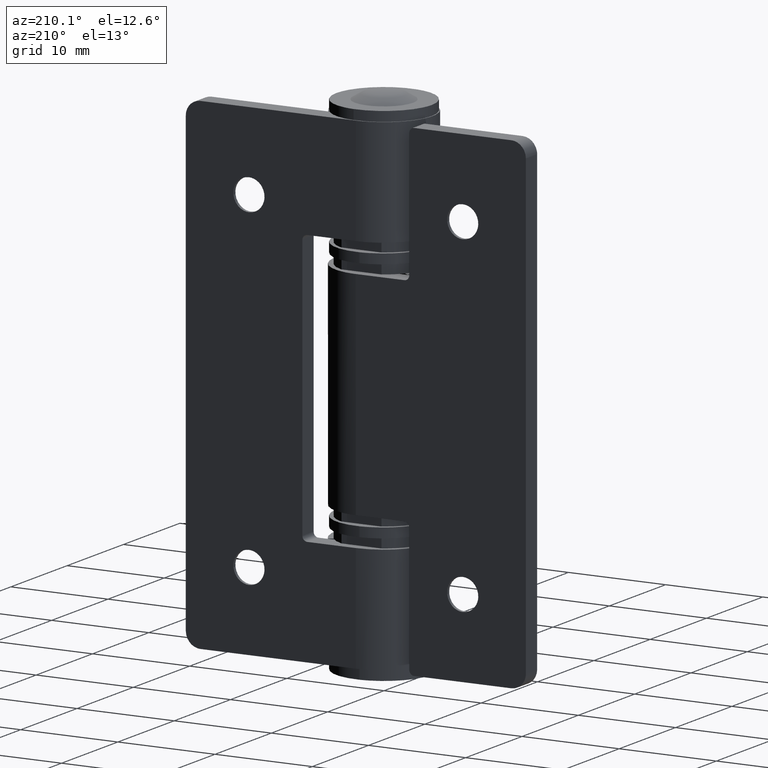
[diagram: clean part render]
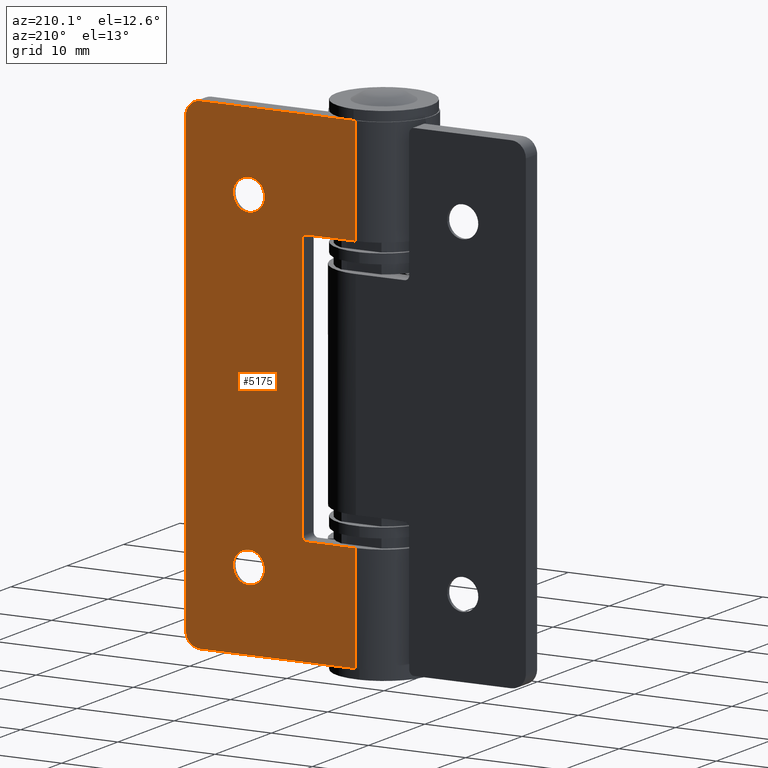
[diagram: same view with one face highlighted and labeled with its STEP entity id]
A machine part, auxiliary view. The second image highlights one B-rep face of the part: STEP entity #5175.
In plain terms, the highlighted face is a freeform B-spline surface patch.
Its self-contained STEP definition (entity closure, byte-faithful):
#3787=CARTESIAN_POINT('',(12.589550637192019,5.000000000001721,41.817438306861419));
#3788=VERTEX_POINT('',#3787);
#3794=CARTESIAN_POINT('',(11.000000000003000,5.000000000001720,40.400000000003111));
#3795=VERTEX_POINT('',#3794);
#3796=CARTESIAN_POINT('',(12.589550637192014,5.000000000001721,41.817438306861412));
#3797=CARTESIAN_POINT('',(12.426755671564422,5.000000000001719,40.400000000003118));
#3798=CARTESIAN_POINT('',(11.000000000003000,5.000000000001720,40.400000000003111));
#3806=(BOUNDED_CURVE()B_SPLINE_CURVE(2,(#3796,#3797,#3798),.UNSPECIFIED.,.F.,.U.)B_SPLINE_CURVE_WITH_KNOTS((3,3),(0.269767889931208,0.500000000000000),.UNSPECIFIED.)CURVE()GEOMETRIC_REPRESENTATION_ITEM()RATIONAL_B_SPLINE_CURVE((0.957343472025282,0.730266304830954,1.0))REPRESENTATION_ITEM(''));
#3807=EDGE_CURVE('',#3788,#3795,#3806,.T.);
#3809=CARTESIAN_POINT('',(9.402984322537780,5.000000000001720,41.902322336635557));
#3810=VERTEX_POINT('',#3809);
#3811=CARTESIAN_POINT('',(11.000000000003000,5.000000000001720,40.400000000003111));
#3812=CARTESIAN_POINT('',(9.494870293162407,5.000000000001720,40.400000000003118));
#3813=CARTESIAN_POINT('',(9.402984322537780,5.000000000001720,41.902322336635557));
#3821=(BOUNDED_CURVE()B_SPLINE_CURVE(2,(#3811,#3812,#3813),.UNSPECIFIED.,.F.,.U.)B_SPLINE_CURVE_WITH_KNOTS((3,3),(0.500000000000000,0.739332962218444),.UNSPECIFIED.)CURVE()GEOMETRIC_REPRESENTATION_ITEM()RATIONAL_B_SPLINE_CURVE((1.0,0.719603993310726,0.976072041622784))REPRESENTATION_ITEM(''));
#3822=EDGE_CURVE('',#3795,#3810,#3821,.T.);
#3917=CARTESIAN_POINT('',(11.000000000003000,5.000000000001720,43.599999999996889));
#3918=VERTEX_POINT('',#3917);
#3919=CARTESIAN_POINT('',(9.402984322537780,5.000000000001720,41.902322336635564));
#3920=CARTESIAN_POINT('',(9.400000000006111,5.000000000001720,41.951115578613184));
#3921=CARTESIAN_POINT('',(9.400000000006113,5.000000000001720,42.0));
#3922=CARTESIAN_POINT('',(9.400000000006113,5.000000000001720,43.599999999996889));
#3923=CARTESIAN_POINT('',(11.000000000003000,5.000000000001720,43.599999999996889));
#3931=(BOUNDED_CURVE()B_SPLINE_CURVE(2,(#3919,#3920,#3921,#3922,#3923),.UNSPECIFIED.,.F.,.U.)B_SPLINE_CURVE_WITH_KNOTS((3,2,3),(0.739332962218444,0.750000000000000,1.0),.UNSPECIFIED.)CURVE()GEOMETRIC_REPRESENTATION_ITEM()RATIONAL_B_SPLINE_CURVE((0.976072041622785,0.987502787875822,1.0,0.707106781186547,1.0))REPRESENTATION_ITEM(''));
#3932=EDGE_CURVE('',#3810,#3918,#3931,.T.);
#3934=CARTESIAN_POINT('',(11.000000000003000,5.000000000001720,43.599999999996889));
#3935=CARTESIAN_POINT('',(12.599999999999884,5.000000000001720,43.599999999996889));
#3936=CARTESIAN_POINT('',(12.599999999999881,5.000000000001720,42.0));
#3937=CARTESIAN_POINT('',(12.599999999999884,5.000000000001720,41.908419788190734));
#3938=CARTESIAN_POINT('',(12.589550637192014,5.000000000001721,41.817438306861412));
#3946=(BOUNDED_CURVE()B_SPLINE_CURVE(2,(#3934,#3935,#3936,#3937,#3938),.UNSPECIFIED.,.F.,.U.)B_SPLINE_CURVE_WITH_KNOTS((3,2,3),(0.0,0.250000000000000,0.269767889931208),.UNSPECIFIED.)CURVE()GEOMETRIC_REPRESENTATION_ITEM()RATIONAL_B_SPLINE_CURVE((1.0,0.707106781186547,1.0,0.976840476355594,0.957343472025282))REPRESENTATION_ITEM(''));
#3947=EDGE_CURVE('',#3918,#3788,#3946,.T.);
#4115=CARTESIAN_POINT('',(12.589550637192019,5.000000000001721,7.817438306861206));
#4116=VERTEX_POINT('',#4115);
#4122=CARTESIAN_POINT('',(11.000000000003000,5.000000000001720,6.400000000002903));
#4123=VERTEX_POINT('',#4122);
#4124=CARTESIAN_POINT('',(12.589550637192017,5.000000000001721,7.817438306861206));
#4125=CARTESIAN_POINT('',(12.426755671564422,5.000000000001721,6.400000000002903));
#4126=CARTESIAN_POINT('',(11.000000000003000,5.000000000001720,6.400000000002903));
#4134=(BOUNDED_CURVE()B_SPLINE_CURVE(2,(#4124,#4125,#4126),.UNSPECIFIED.,.F.,.U.)B_SPLINE_CURVE_WITH_KNOTS((3,3),(0.269767889931208,0.500000000000000),.UNSPECIFIED.)CURVE()GEOMETRIC_REPRESENTATION_ITEM()RATIONAL_B_SPLINE_CURVE((0.957343472025282,0.730266304830954,1.0))REPRESENTATION_ITEM(''));
#4135=EDGE_CURVE('',#4116,#4123,#4134,.T.);
#4137=CARTESIAN_POINT('',(9.402984322537780,5.000000000001720,7.902322336635345));
#4138=VERTEX_POINT('',#4137);
#4139=CARTESIAN_POINT('',(11.000000000003000,5.000000000001720,6.400000000002903));
#4140=CARTESIAN_POINT('',(9.494870293162407,5.000000000001720,6.400000000002904));
#4141=CARTESIAN_POINT('',(9.402984322537780,5.000000000001720,7.902322336635345));
#4149=(BOUNDED_CURVE()B_SPLINE_CURVE(2,(#4139,#4140,#4141),.UNSPECIFIED.,.F.,.U.)B_SPLINE_CURVE_WITH_KNOTS((3,3),(0.500000000000000,0.739332962218444),.UNSPECIFIED.)CURVE()GEOMETRIC_REPRESENTATION_ITEM()RATIONAL_B_SPLINE_CURVE((1.0,0.719603993310726,0.976072041622784))REPRESENTATION_ITEM(''));
#4150=EDGE_CURVE('',#4123,#4138,#4149,.T.);
#4245=CARTESIAN_POINT('',(11.000000000003000,5.000000000001720,9.599999999996674));
#4246=VERTEX_POINT('',#4245);
#4247=CARTESIAN_POINT('',(9.402984322537780,5.000000000001720,7.902322336635345));
#4248=CARTESIAN_POINT('',(9.400000000006113,5.000000000001720,7.951115578612974));
#4249=CARTESIAN_POINT('',(9.400000000006113,5.000000000001720,7.999999999999789));
#4250=CARTESIAN_POINT('',(9.400000000006113,5.000000000001720,9.599999999996674));
#4251=CARTESIAN_POINT('',(11.000000000003000,5.000000000001720,9.599999999996674));
#4259=(BOUNDED_CURVE()B_SPLINE_CURVE(2,(#4247,#4248,#4249,#4250,#4251),.UNSPECIFIED.,.F.,.U.)B_SPLINE_CURVE_WITH_KNOTS((3,2,3),(0.739332962218445,0.750000000000000,1.0),.UNSPECIFIED.)CURVE()GEOMETRIC_REPRESENTATION_ITEM()RATIONAL_B_SPLINE_CURVE((0.976072041622786,0.987502787875822,1.0,0.707106781186547,1.0))REPRESENTATION_ITEM(''));
#4260=EDGE_CURVE('',#4138,#4246,#4259,.T.);
#4262=CARTESIAN_POINT('',(11.000000000003000,5.000000000001720,9.599999999996674));
#4263=CARTESIAN_POINT('',(12.599999999999884,5.000000000001720,9.599999999996674));
#4264=CARTESIAN_POINT('',(12.599999999999881,5.000000000001720,7.999999999999789));
#4265=CARTESIAN_POINT('',(12.599999999999884,5.000000000001720,7.908419788190527));
#4266=CARTESIAN_POINT('',(12.589550637192017,5.000000000001721,7.817438306861206));
#4274=(BOUNDED_CURVE()B_SPLINE_CURVE(2,(#4262,#4263,#4264,#4265,#4266),.UNSPECIFIED.,.F.,.U.)B_SPLINE_CURVE_WITH_KNOTS((3,2,3),(0.0,0.250000000000000,0.269767889931208),.UNSPECIFIED.)CURVE()GEOMETRIC_REPRESENTATION_ITEM()RATIONAL_B_SPLINE_CURVE((1.0,0.707106781186547,1.0,0.976840476355594,0.957343472025282))REPRESENTATION_ITEM(''));
#4275=EDGE_CURVE('',#4246,#4116,#4274,.T.);
#4422=CARTESIAN_POINT('',(5.0,5.000000000000190,11.0));
#4423=VERTEX_POINT('',#4422);
#4424=CARTESIAN_POINT('',(5.500000000000000,5.000000000000290,11.499999999999840));
#4425=VERTEX_POINT('',#4424);
#4426=CARTESIAN_POINT('',(5.0,5.000000000000190,11.0));
#4427=CARTESIAN_POINT('',(5.500000000000001,4.999999999995549,10.999999999999861));
#4428=CARTESIAN_POINT('',(5.500000000000000,5.000000000000290,11.499999999999840));
#4436=(BOUNDED_CURVE()B_SPLINE_CURVE(2,(#4426,#4427,#4428),.UNSPECIFIED.,.F.,.U.)CURVE()GEOMETRIC_REPRESENTATION_ITEM()QUASI_UNIFORM_CURVE()RATIONAL_B_SPLINE_CURVE((1.0,0.707106781186548,1.0))REPRESENTATION_ITEM(''));
#4437=EDGE_CURVE('',#4423,#4425,#4436,.T.);
#4483=CARTESIAN_POINT('',(5.500000000000000,5.000000000000290,38.500000000000000));
#4484=VERTEX_POINT('',#4483);
#4485=CARTESIAN_POINT('',(5.0,5.000000000000190,39.0));
#4486=VERTEX_POINT('',#4485);
#4487=CARTESIAN_POINT('',(5.500000000000000,5.000000000000290,38.500000000000000));
#4488=CARTESIAN_POINT('',(5.500000000000001,4.999999999995549,39.000000000000007));
#4489=CARTESIAN_POINT('',(5.0,5.000000000000190,39.0));
#4497=(BOUNDED_CURVE()B_SPLINE_CURVE(2,(#4487,#4488,#4489),.UNSPECIFIED.,.F.,.U.)CURVE()GEOMETRIC_REPRESENTATION_ITEM()QUASI_UNIFORM_CURVE()RATIONAL_B_SPLINE_CURVE((1.0,0.707106781186548,1.0))REPRESENTATION_ITEM(''));
#4498=EDGE_CURVE('',#4484,#4486,#4497,.T.);
#4543=CARTESIAN_POINT('',(1.738135E-012,4.999999999999190,11.0));
#4544=VERTEX_POINT('',#4543);
#4545=CARTESIAN_POINT('',(5.0,5.000000000000190,11.0));
#4546=CARTESIAN_POINT('',(1.738135E-012,4.999999999999190,11.0));
#4547=QUASI_UNIFORM_CURVE('',1,(#4545,#4546),.UNSPECIFIED.,.F.,.U.);
#4548=EDGE_CURVE('',#4423,#4544,#4547,.T.);
#4605=CARTESIAN_POINT('',(1.738135E-012,4.999999999999190,39.0));
#4606=VERTEX_POINT('',#4605);
#4607=CARTESIAN_POINT('',(1.738135E-012,4.999999999999190,39.0));
#4608=CARTESIAN_POINT('',(5.0,5.000000000000190,39.0));
#4609=QUASI_UNIFORM_CURVE('',1,(#4607,#4608),.UNSPECIFIED.,.F.,.U.);
#4610=EDGE_CURVE('',#4606,#4486,#4609,.T.);
#4681=CARTESIAN_POINT('',(5.500000000000000,5.000000000000290,38.500000000000000));
#4682=CARTESIAN_POINT('',(5.500000000000000,5.000000000000290,11.499999999999840));
#4683=QUASI_UNIFORM_CURVE('',1,(#4681,#4682),.UNSPECIFIED.,.F.,.U.);
#4684=EDGE_CURVE('',#4484,#4425,#4683,.T.);
#4704=CARTESIAN_POINT('',(16.000000000002700,5.000000000002400,50.0));
#4705=VERTEX_POINT('',#4704);
#4706=CARTESIAN_POINT('',(17.499999999952301,5.000000000002700,48.500000000000000));
#4707=VERTEX_POINT('',#4706);
#4708=CARTESIAN_POINT('',(16.000000000002700,5.000000000002400,50.0));
#4709=CARTESIAN_POINT('',(17.500000000002697,5.000000000002701,50.0));
#4710=CARTESIAN_POINT('',(17.499999999952301,5.000000000002700,48.500000000000000));
#4718=(BOUNDED_CURVE()B_SPLINE_CURVE(2,(#4708,#4709,#4710),.UNSPECIFIED.,.F.,.U.)CURVE()GEOMETRIC_REPRESENTATION_ITEM()QUASI_UNIFORM_CURVE()RATIONAL_B_SPLINE_CURVE((1.0,0.707106781186548,1.0))REPRESENTATION_ITEM(''));
#4719=EDGE_CURVE('',#4705,#4707,#4718,.T.);
#4765=CARTESIAN_POINT('',(17.499999999952301,5.000000000002700,1.499999999999946));
#4766=VERTEX_POINT('',#4765);
#4767=CARTESIAN_POINT('',(16.000000000002700,5.000000000002400,0.0));
#4768=VERTEX_POINT('',#4767);
#4769=CARTESIAN_POINT('',(17.499999999952301,5.000000000002700,1.499999999999946));
#4770=CARTESIAN_POINT('',(17.500000000002697,5.000000000002701,0.0));
#4771=CARTESIAN_POINT('',(16.000000000002700,5.000000000002400,0.0));
#4779=(BOUNDED_CURVE()B_SPLINE_CURVE(2,(#4769,#4770,#4771),.UNSPECIFIED.,.F.,.U.)CURVE()GEOMETRIC_REPRESENTATION_ITEM()QUASI_UNIFORM_CURVE()RATIONAL_B_SPLINE_CURVE((1.0,0.707106781186548,1.0))REPRESENTATION_ITEM(''));
#4780=EDGE_CURVE('',#4766,#4768,#4779,.T.);
#4817=CARTESIAN_POINT('',(1.738135E-012,4.999999999999091,0.0));
#4818=VERTEX_POINT('',#4817);
#4819=CARTESIAN_POINT('',(1.738135E-012,4.999999999999091,0.0));
#4820=CARTESIAN_POINT('',(16.000000000002700,5.000000000002400,0.0));
#4821=QUASI_UNIFORM_CURVE('',1,(#4819,#4820),.UNSPECIFIED.,.F.,.U.);
#4822=EDGE_CURVE('',#4818,#4768,#4821,.T.);
#4895=CARTESIAN_POINT('',(1.738135E-012,4.999999999999091,50.0));
#4896=VERTEX_POINT('',#4895);
#4897=CARTESIAN_POINT('',(1.738135E-012,4.999999999999091,50.0));
#4898=CARTESIAN_POINT('',(16.000000000002700,5.000000000002400,50.0));
#4899=QUASI_UNIFORM_CURVE('',1,(#4897,#4898),.UNSPECIFIED.,.F.,.U.);
#4900=EDGE_CURVE('',#4896,#4705,#4899,.T.);
#4975=CARTESIAN_POINT('',(1.738135E-012,4.999999999999190,11.0));
#4976=CARTESIAN_POINT('',(1.738135E-012,4.999999999999091,0.0));
#4977=QUASI_UNIFORM_CURVE('',1,(#4975,#4976),.UNSPECIFIED.,.F.,.U.);
#4978=EDGE_CURVE('',#4544,#4818,#4977,.T.);
#5049=CARTESIAN_POINT('',(17.499999999952301,5.000000000002700,48.500000000000000));
#5050=CARTESIAN_POINT('',(17.499999999952301,5.000000000002700,1.499999999999946));
#5051=QUASI_UNIFORM_CURVE('',1,(#5049,#5050),.UNSPECIFIED.,.F.,.U.);
#5052=EDGE_CURVE('',#4707,#4766,#5051,.T.);
#5080=CARTESIAN_POINT('',(1.738135E-012,4.999999999999091,50.0));
#5081=CARTESIAN_POINT('',(1.738135E-012,4.999999999999190,39.0));
#5082=QUASI_UNIFORM_CURVE('',1,(#5080,#5081),.UNSPECIFIED.,.F.,.U.);
#5083=EDGE_CURVE('',#4896,#4606,#5082,.T.);
#5144=CARTESIAN_POINT('',(18.374124966031442,5.000000000002874,-2.497499903090299));
#5145=CARTESIAN_POINT('',(-0.874125435463974,4.999999999999015,-2.497499903090299));
#5146=CARTESIAN_POINT('',(18.374124966031442,5.000000000002875,52.497501244194808));
#5147=CARTESIAN_POINT('',(-0.874125435463974,4.999999999999015,52.497501244194808));
#5148=B_SPLINE_SURFACE_WITH_KNOTS('',1,1,((#5144,#5146),(#5145,#5147)),.UNSPECIFIED.,.F.,.F.,.U.,(2,2),(2,2),(0.0,19.248250401495412),(0.0,54.995001147285109),.UNSPECIFIED.);
#5149=ORIENTED_EDGE('',*,*,#4610,.F.);
#5150=ORIENTED_EDGE('',*,*,#5083,.F.);
#5151=ORIENTED_EDGE('',*,*,#4900,.T.);
#5152=ORIENTED_EDGE('',*,*,#4719,.T.);
#5153=ORIENTED_EDGE('',*,*,#5052,.T.);
#5154=ORIENTED_EDGE('',*,*,#4780,.T.);
#5155=ORIENTED_EDGE('',*,*,#4822,.F.);
#5156=ORIENTED_EDGE('',*,*,#4978,.F.);
#5157=ORIENTED_EDGE('',*,*,#4548,.F.);
#5158=ORIENTED_EDGE('',*,*,#4437,.T.);
#5159=ORIENTED_EDGE('',*,*,#4684,.F.);
#5160=ORIENTED_EDGE('',*,*,#4498,.T.);
#5161=EDGE_LOOP('',(#5149,#5150,#5151,#5152,#5153,#5154,#5155,#5156,#5157,#5158,#5159,#5160));
#5162=FACE_OUTER_BOUND('',#5161,.T.);
#5163=ORIENTED_EDGE('',*,*,#4150,.F.);
#5164=ORIENTED_EDGE('',*,*,#4135,.F.);
#5165=ORIENTED_EDGE('',*,*,#4275,.F.);
#5166=ORIENTED_EDGE('',*,*,#4260,.F.);
#5167=EDGE_LOOP('',(#5163,#5164,#5165,#5166));
#5168=FACE_BOUND('',#5167,.T.);
#5169=ORIENTED_EDGE('',*,*,#3822,.F.);
#5170=ORIENTED_EDGE('',*,*,#3807,.F.);
#5171=ORIENTED_EDGE('',*,*,#3947,.F.);
#5172=ORIENTED_EDGE('',*,*,#3932,.F.);
#5173=EDGE_LOOP('',(#5169,#5170,#5171,#5172));
#5174=FACE_BOUND('',#5173,.T.);
#5175=ADVANCED_FACE('',(#5162,#5168,#5174),#5148,.T.);